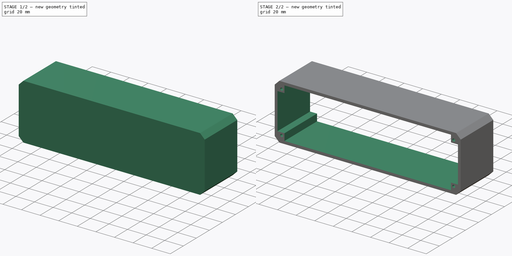
[diagram: build sequence overview — one tinted view per stage of 2, left to right]
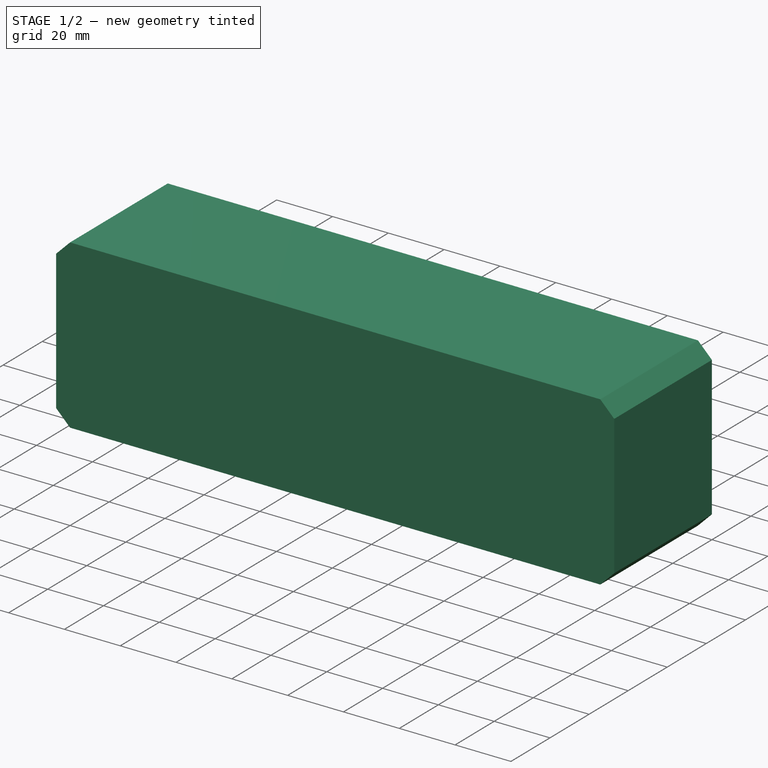
[diagram: stage 1 of 2 — iso view after this stage's code; geometry added in this stage tinted green]
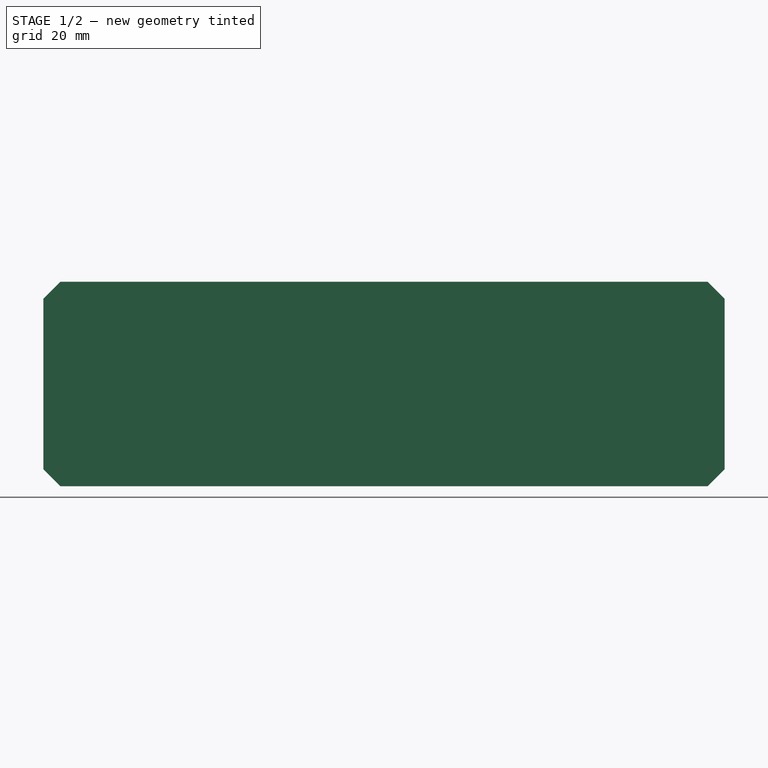
[diagram: stage 1 of 2 — front view after this stage's code; geometry added in this stage tinted green]
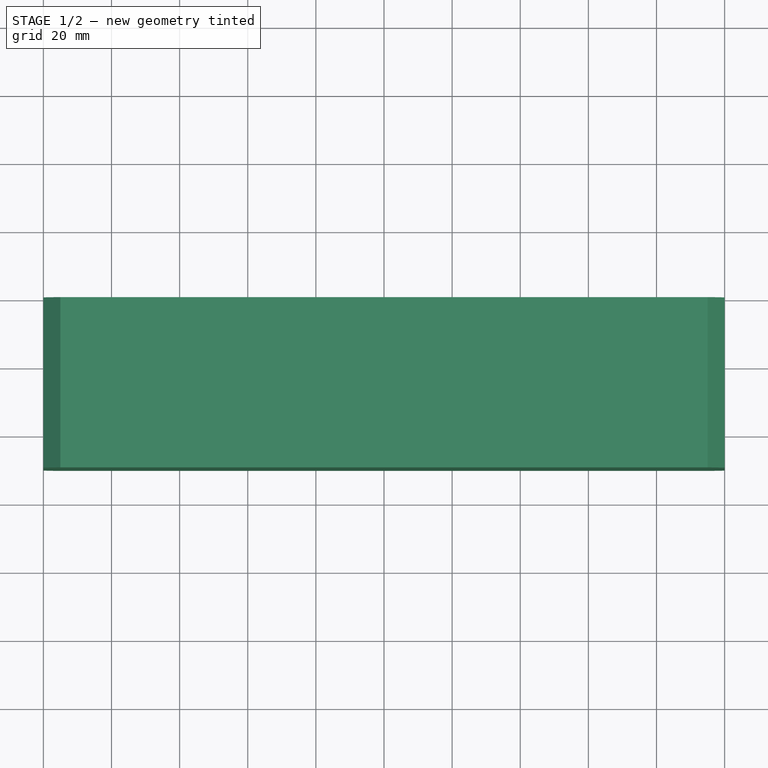
[diagram: stage 1 of 2 — top view after this stage's code; geometry added in this stage tinted green]
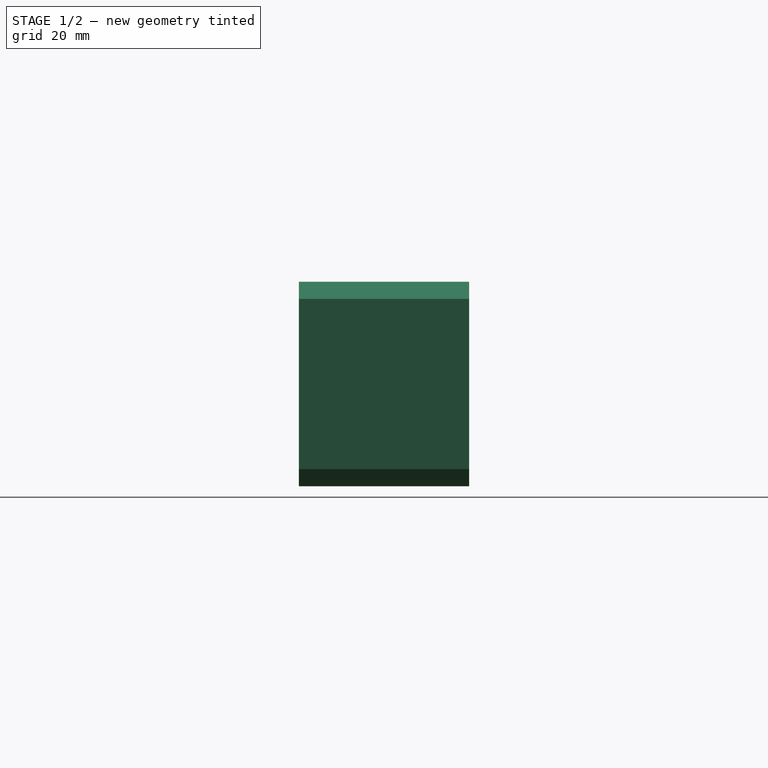
[diagram: stage 1 of 2 — right view after this stage's code; geometry added in this stage tinted green]
FCSTD DOCUMENT  (FreeCAD 1.0R39109 (Git))
Label: main-body
License: All rights reserved
LicenseURL: https://en.wikipedia.org/wiki/All_rights_reserved
objects: Sketcher::SketchObject×2, PartDesign::Pad×1, PartDesign::Chamfer×1, PartDesign::Pocket×1, PartDesign::Body×1
note: 14 computed .brp shape members not serialized (recipe doc carries the construction recipe); baked Part::Feature solids carry a one-line shape summary decoded from their .brp

FEATURE [Sketcher::SketchObject] Sketch
  ArcFitTolerance = 1e-06
  AttachmentSupport = -> [XZ_Plane]
  FullyConstrained = true
  MakeInternals = false
  MapMode = 5
  Placement = pos=(0,0,0) rot=(1,0,0;1.5708rad)
  sketch-geometry (4):
    g0: LineSegment StartX=0 StartY=0 StartZ=0 EndX=200 EndY=0 EndZ=0
    g1: LineSegment StartX=200 StartY=0 StartZ=0 EndX=200 EndY=60 EndZ=0
    g2: LineSegment StartX=200 StartY=60 StartZ=0 EndX=0 EndY=60 EndZ=0
    g3: LineSegment StartX=0 StartY=60 StartZ=0 EndX=0 EndY=0 EndZ=0
  constraints (11):
    c: Coincident(g0,g1)
    c: Coincident(g1,g2)
    c: Coincident(g2,g3)
    c: Coincident(g3,g0)
    c: Horizontal(g0)
    c: Horizontal(g2)
    c: Vertical(g1)
    c: Vertical(g3)
    c: Coincident(g0,g-1)
    c: DistanceX(g0,g0) = 200
    c: DistanceY(g1,g1) = 60
FEATURE [PartDesign::Pad] Pad
  Direction = (0,-1,2e-16)
  Length = 50
  Length2 = 10
  Placement = pos=(0,0,0) rot=(1,0,0;1.5708rad)
  Profile = -> Sketch
  ReferenceAxis = -> Sketch [N_Axis]
  Refine = true
  Suppressed = false
  Type = 0
FEATURE [PartDesign::Chamfer] Chamfer
  Angle = 45
  Base = -> Pad [Edge2,Edge5,Edge8,Edge1]
  BaseFeature = -> Pad
  ChamferType = 0
  FlipDirection = false
  Placement = pos=(0,0,0) rot=(1,0,0;1.5708rad)
  Refine = true
  Size = 5
  Size2 = 1
  SupportTransform = false
  Suppressed = false
  UseAllEdges = false
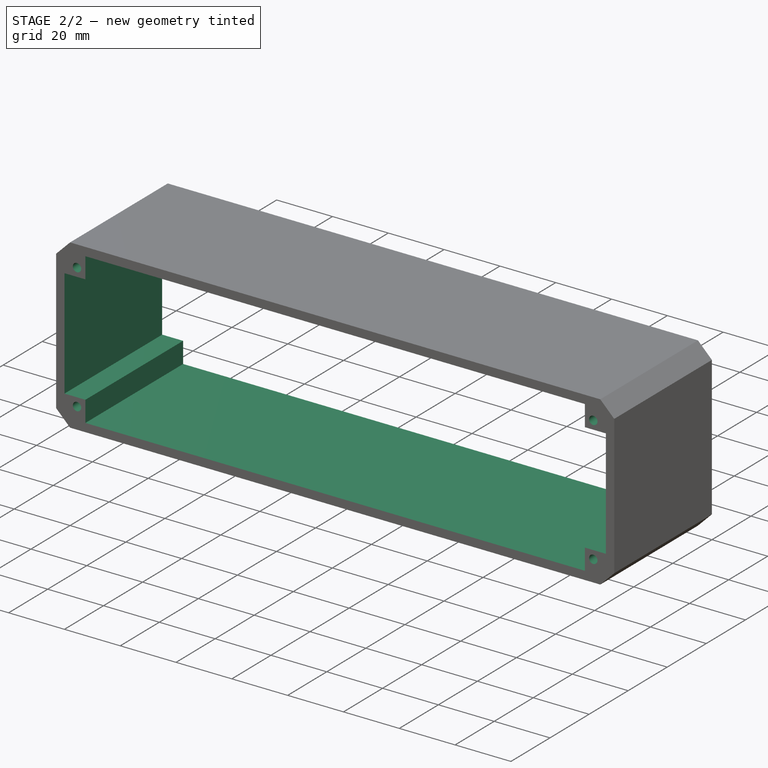
[diagram: stage 2 of 2 — iso view after this stage's code; geometry added in this stage tinted green]
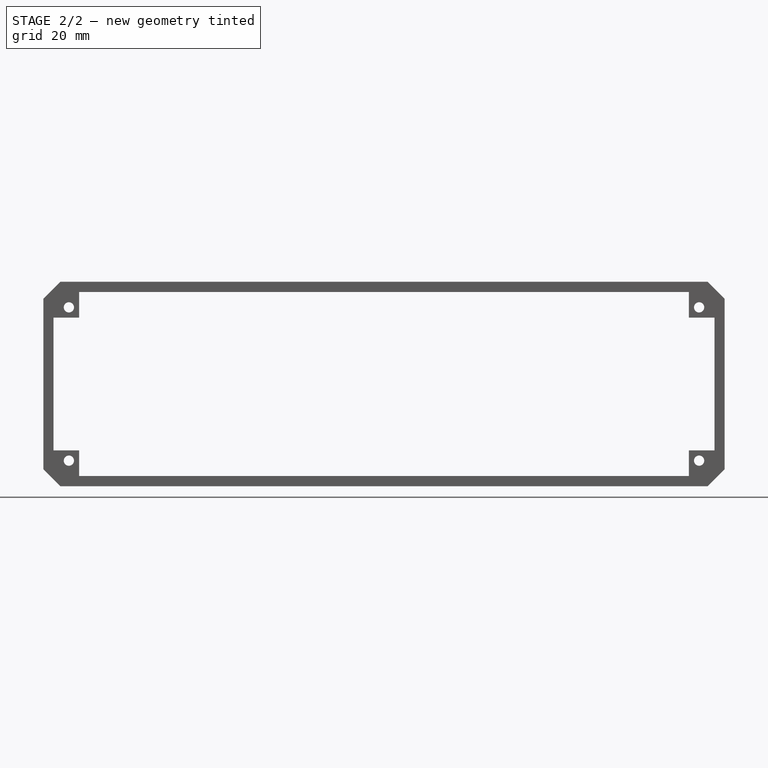
[diagram: stage 2 of 2 — front view after this stage's code; geometry added in this stage tinted green]
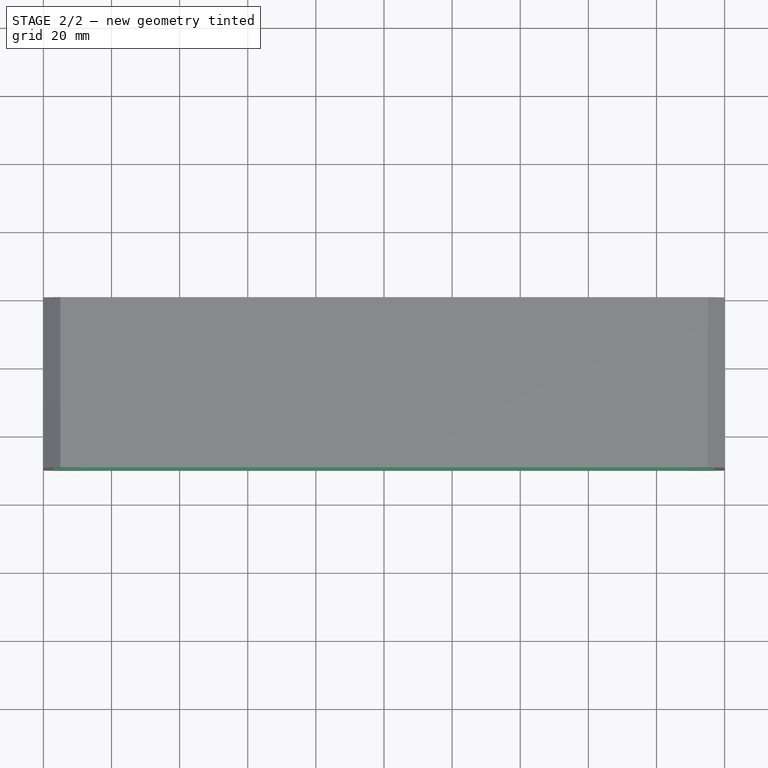
[diagram: stage 2 of 2 — top view after this stage's code; geometry added in this stage tinted green]
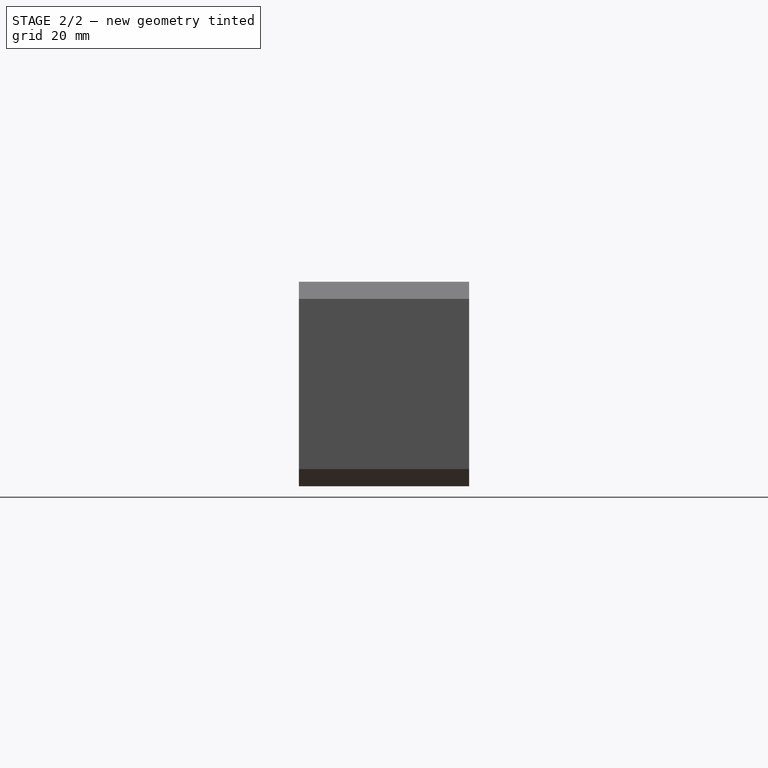
[diagram: stage 2 of 2 — right view after this stage's code; geometry added in this stage tinted green]
FEATURE [Sketcher::SketchObject] Sketch001
  ArcFitTolerance = 1e-06
  AttachmentSupport = -> [Chamfer]
  ExternalGeometry = -> [Pad]
  FullyConstrained = true
  MakeInternals = false
  MapMode = 5
  Placement = pos=(0,-50,0) rot=(1,0,0;1.5708rad)
  sketch-geometry (20):
    g0: LineSegment [constr] StartX=7.5 StartY=52.5 StartZ=0 EndX=7.5 EndY=7.5 EndZ=0
    g1: LineSegment [constr] StartX=7.5 StartY=7.5 StartZ=0 EndX=192.5 EndY=7.5 EndZ=0
    g2: LineSegment [constr] StartX=192.5 StartY=7.5 StartZ=0 EndX=192.5 EndY=52.5 EndZ=0
    g3: LineSegment [constr] StartX=192.5 StartY=52.5 StartZ=0 EndX=7.5 EndY=52.5 EndZ=0
    g4: Circle CenterX=7.5 CenterY=52.5 CenterZ=0 NormalX=0 NormalY=0 NormalZ=1 AngleXU=0 Radius=1.5
    g5: Circle CenterX=192.5 CenterY=52.5 CenterZ=0 NormalX=0 NormalY=0 NormalZ=1 AngleXU=0 Radius=1.5
    g6: Circle CenterX=192.5 CenterY=7.5 CenterZ=0 NormalX=0 NormalY=0 NormalZ=1 AngleXU=0 Radius=1.5
    g7: Circle CenterX=7.5 CenterY=7.5 CenterZ=0 NormalX=0 NormalY=0 NormalZ=1 AngleXU=0 Radius=1.5
    g8: LineSegment StartX=10.5 StartY=57 StartZ=0 EndX=189.5 EndY=57 EndZ=0
    g9: LineSegment StartX=197 StartY=49.5 StartZ=0 EndX=197 EndY=10.5 EndZ=0
    g10: LineSegment StartX=189.5 StartY=3 StartZ=0 EndX=10.5 EndY=3 EndZ=0
    g11: LineSegment StartX=3 StartY=10.5 StartZ=0 EndX=3 EndY=49.5 EndZ=0
    g12: LineSegment StartX=3 StartY=49.5 StartZ=0 EndX=10.5 EndY=49.5 EndZ=0
    g13: LineSegment StartX=10.5 StartY=49.5 StartZ=0 EndX=10.5 EndY=57 EndZ=0
    g14: LineSegment StartX=189.5 StartY=57 StartZ=0 EndX=189.5 EndY=49.5 EndZ=0
    g15: LineSegment StartX=189.5 StartY=49.5 StartZ=0 EndX=197 EndY=49.5 EndZ=0
    g16: LineSegment StartX=197 StartY=10.5 StartZ=0 EndX=189.5 EndY=10.5 EndZ=0
    g17: LineSegment StartX=189.5 StartY=10.5 StartZ=0 EndX=189.5 EndY=3 EndZ=0
    g18: LineSegment StartX=3 StartY=10.5 StartZ=0 EndX=10.5 EndY=10.5 EndZ=0
    g19: LineSegment StartX=10.5 StartY=10.5 StartZ=0 EndX=10.5 EndY=3 EndZ=0
  constraints (56):
    c: Coincident(g0,g1)
    c: Coincident(g1,g2)
    c: Coincident(g2,g3)
    c: Coincident(g3,g0)
    c: Vertical(g0)
    c: Vertical(g2)
    c: Horizontal(g1)
    c: Horizontal(g3)
    c: Distance(g-4,g3) = 7.5
    c: Distance(g-3,g0) = 7.5
    c: Distance(g-6,g1) = 7.5
    c: Distance(g-5,g2) = 7.5
    c: Coincident(g4,g0)
    c: Coincident(g5,g2)
    c: Coincident(g6,g1)
    c: Coincident(g7,g0)
    c: Equal(g7,g4)
    c: Equal(g4,g5)
    c: Equal(g5,g6)
    c: Diameter(g4) = 3
    c: Horizontal(g8)
    c: Vertical(g9)
    c: Horizontal(g10)
    c: Vertical(g11)
    c: Distance(g-4,g8) = 3
    c: Distance(g-3,g11) = 3
    c: Distance(g-6,g10) = 3
    c: Distance(g-5,g9) = 3
    c: Coincident(g12,g11)
    c: Horizontal(g12)
    c: Coincident(g13,g12)
    c: Vertical(g13)
    c: Coincident(g13,g8)
    c: Equal(g13,g12)
    c: Coincident(g14,g8)
    c: Vertical(g14)
    c: Coincident(g15,g14)
    c: Coincident(g15,g9)
    c: Horizontal(g15)
    c: Coincident(g16,g9)
    c: Horizontal(g16)
    c: Coincident(g17,g16)
    c: Coincident(g17,g10)
    c: Vertical(g17)
    c: Coincident(g18,g11)
    c: Horizontal(g18)
    c: Coincident(g19,g18)
    c: Coincident(g19,g10)
    c: Vertical(g19)
    c: Equal(g18,g19)
    c: Equal(g19,g17)
    c: Equal(g17,g16)
    c: Equal(g16,g15)
    c: Equal(g15,g14)
    c: Equal(g14,g13)
    c: DistanceY(g13,g13) = 7.5
FEATURE [PartDesign::Pocket] Pocket
  BaseFeature = -> Chamfer
  Direction = (0,1,-2e-16)
  Length = 5
  Length2 = 5
  Placement = pos=(0,0,0) rot=(1,0,0;1.5708rad)
  Profile = -> Sketch001
  ReferenceAxis = -> Sketch001 [N_Axis]
  Refine = true
  Suppressed = false
  Type = 1
FEATURE [PartDesign::Body] Body  label="main_body"
  AllowCompound = false
  Group = -> [Sketch,Pad,Sketch001,Chamfer,Pocket]
  Origin = -> Origin
  Tip = -> Pocket
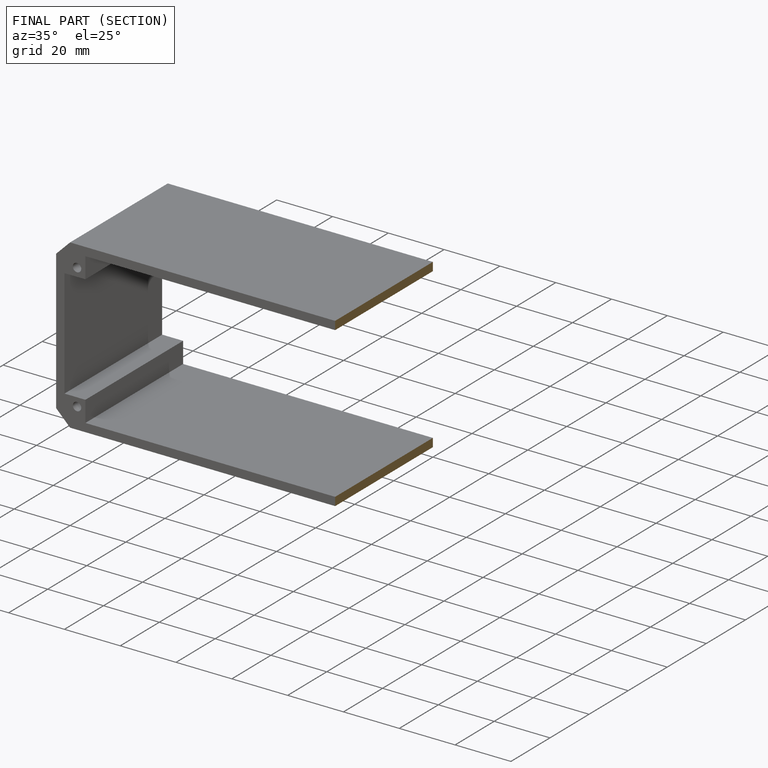
[diagram: finished part — half-section view (interior)]
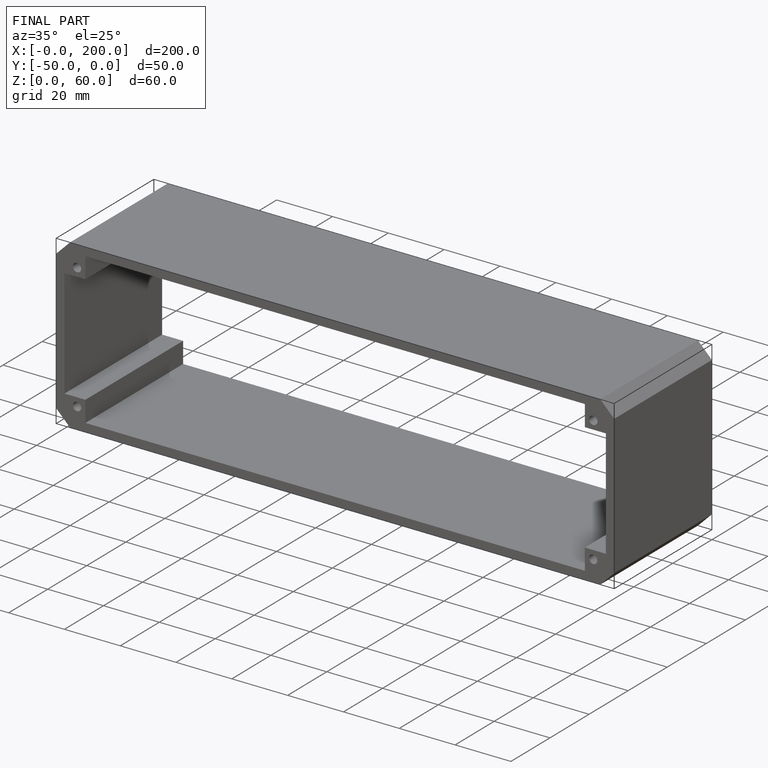
[diagram: finished part — iso view with bounding-box wireframe]
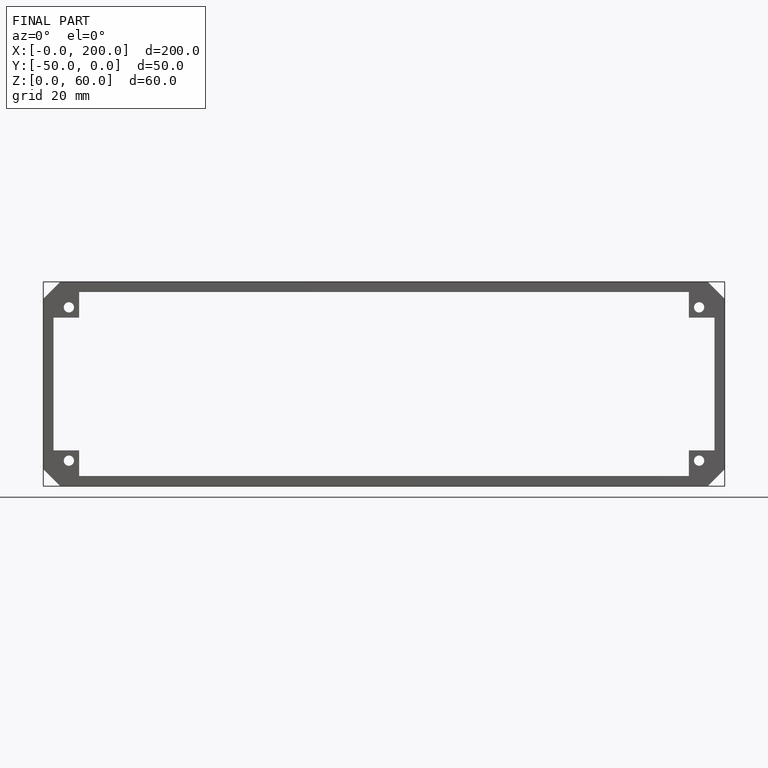
[diagram: finished part — front view with bounding-box wireframe]
